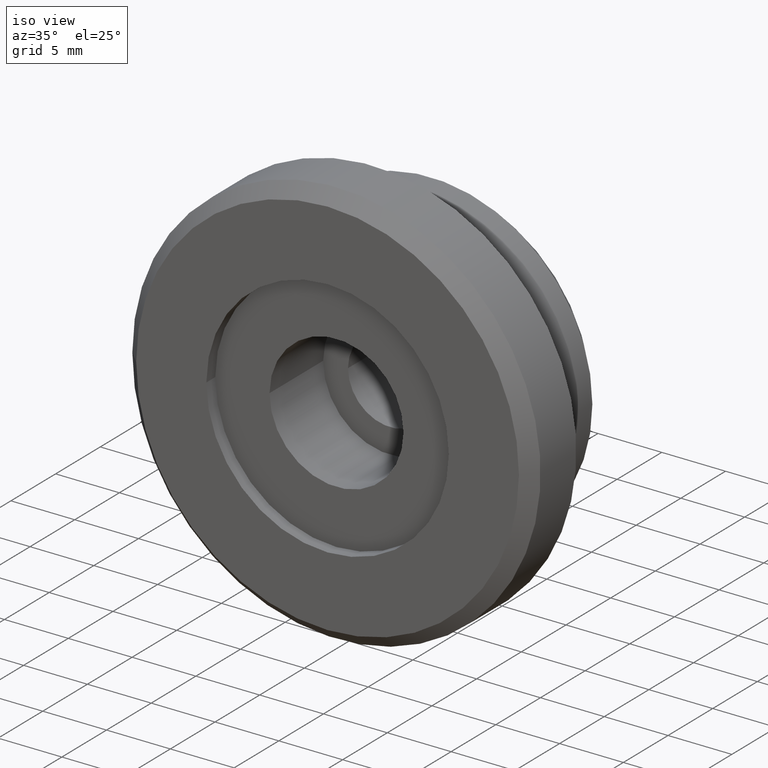
[diagram: clean part render]
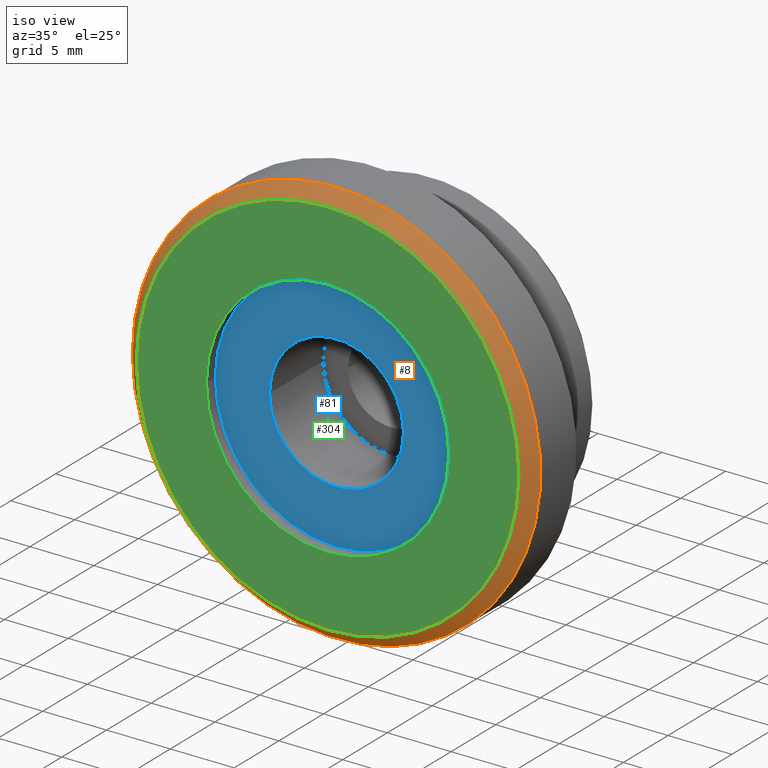
[diagram: same view with three faces highlighted in distinct colors, each labeled with its STEP entity id]
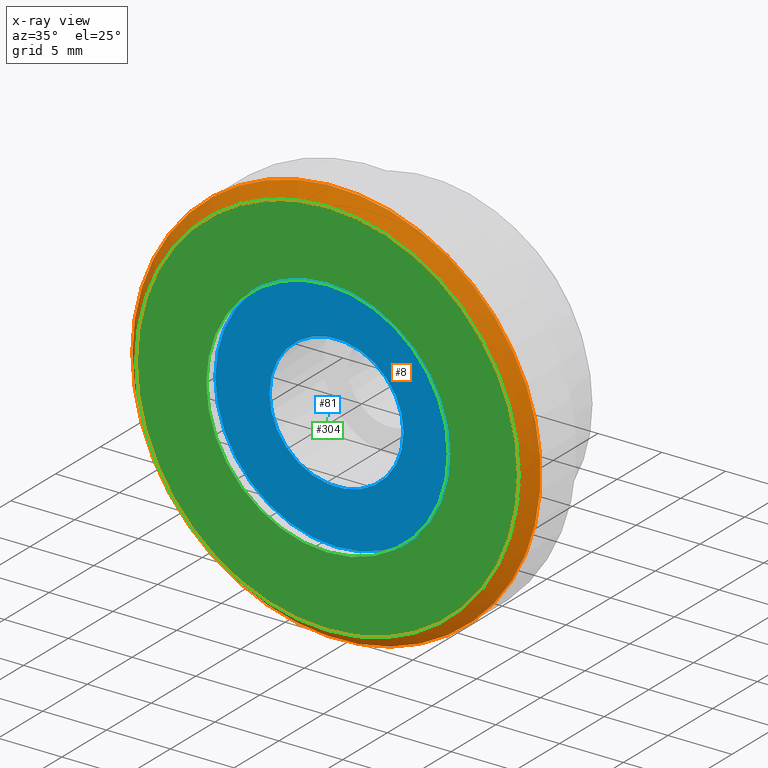
[diagram: x-ray of the same camera — body ghosted, the three highlighted faces saturated]
A machine part, iso view with three faces highlighted in distinct colors.
The next image is the same camera in x-ray (body ghosted, the three faces saturated) — at least one of them is partly hidden behind the body in this view.
Their STEP definitions:

[orange] entity #8 — the highlighted conical surface has half-angle 45 deg.
#8 = ADVANCED_FACE ( 'NONE', ( #303, #338 ), #324, .T. ) ;
#19 = DIRECTION ( 'NONE',  ( -1.000000000000000000, -1.084202172485504681E-16, 0.000000000000000000 ) ) ;
#25 = CARTESIAN_POINT ( 'NONE',  ( -1.880790961315660451E-31, -11.40000000000000213, 0.000000000000000000 ) ) ;
#33 = CARTESIAN_POINT ( 'NONE',  ( 1.084202172485501846E-16, -12.40000000000000213, 0.000000000000000000 ) ) ;
#44 = DIRECTION ( 'NONE',  ( -1.084202172485504681E-16, 1.000000000000000000, 0.000000000000000000 ) ) ;
#70 = VERTEX_POINT ( 'NONE', #299 ) ;
#90 = ORIENTED_EDGE ( 'NONE', *, *, #259, .T. ) ;
#92 = AXIS2_PLACEMENT_3D ( 'NONE', #25, #44, #19 ) ;
#93 = ORIENTED_EDGE ( 'NONE', *, *, #227, .F. ) ;
#118 = VERTEX_POINT ( 'NONE', #359 ) ;
#143 = EDGE_LOOP ( 'NONE', ( #93 ) ) ;
#166 = CIRCLE ( 'NONE', #180, 15.99999999999999645 ) ;
#180 = AXIS2_PLACEMENT_3D ( 'NONE', #233, #263, #316 ) ;
#227 = EDGE_CURVE ( 'NONE', #70, #70, #166, .T. ) ;
#233 = CARTESIAN_POINT ( 'NONE',  ( 1.365923996832131856E-16, -11.40000000000000391, 0.000000000000000000 ) ) ;
#257 = AXIS2_PLACEMENT_3D ( 'NONE', #33, #352, #284 ) ;
#259 = EDGE_CURVE ( 'NONE', #118, #118, #272, .T. ) ;
#263 = DIRECTION ( 'NONE',  ( -3.414809992080329023E-17, 1.000000000000000000, 0.000000000000000000 ) ) ;
#272 = CIRCLE ( 'NONE', #257, 15.00000000000003020 ) ;
#284 = DIRECTION ( 'NONE',  ( -1.000000000000000000, -1.156482317317869013E-16, 0.000000000000000000 ) ) ;
#299 = CARTESIAN_POINT ( 'NONE',  ( -15.99999999999999645, -11.40000000000000391, 0.000000000000000000 ) ) ;
#303 = FACE_OUTER_BOUND ( 'NONE', #143, .T. ) ;
#316 = DIRECTION ( 'NONE',  ( -1.000000000000000000, 0.000000000000000000, 0.000000000000000000 ) ) ;
#324 = CONICAL_SURFACE ( 'NONE', #92, 15.99999999999999645, 0.7853981633974318477 ) ;
#338 = FACE_BOUND ( 'NONE', #347, .T. ) ;
#347 = EDGE_LOOP ( 'NONE', ( #90 ) ) ;
#352 = DIRECTION ( 'NONE',  ( -1.084202172485504681E-16, 1.000000000000000000, 0.000000000000000000 ) ) ;
#359 = CARTESIAN_POINT ( 'NONE',  ( -15.00000000000003020, -12.40000000000000391, 0.000000000000000000 ) ) ;

[blue] entity #81 — the highlighted planar face has unit normal (0, -1, 0).
#21 = CARTESIAN_POINT ( 'NONE',  ( 8.499999999999964473, -11.39999999999996838, 0.000000000000000000 ) ) ;
#59 = DIRECTION ( 'NONE',  ( -1.000000000000000000, 0.000000000000000000, 0.000000000000000000 ) ) ;
#81 = ADVANCED_FACE ( 'NONE', ( #277, #220 ), #155, .T. ) ;
#82 = DIRECTION ( 'NONE',  ( 3.414809992080329023E-17, -1.000000000000000000, -0.000000000000000000 ) ) ;
#91 = CARTESIAN_POINT ( 'NONE',  ( -9.500000000000076383, -11.40000000000000036, 0.000000000000000000 ) ) ;
#117 = ORIENTED_EDGE ( 'NONE', *, *, #265, .T. ) ;
#121 = CIRCLE ( 'NONE', #337, 5.249999999999999112 ) ;
#127 = EDGE_CURVE ( 'NONE', #331, #331, #121, .T. ) ;
#155 = PLANE ( 'NONE',  #188 ) ;
#159 = AXIS2_PLACEMENT_3D ( 'NONE', #350, #82, #59 ) ;
#169 = ORIENTED_EDGE ( 'NONE', *, *, #127, .T. ) ;
#188 = AXIS2_PLACEMENT_3D ( 'NONE', #21, #218, #280 ) ;
#189 = DIRECTION ( 'NONE',  ( -3.414809992080329023E-17, 1.000000000000000000, 0.000000000000000000 ) ) ;
#218 = DIRECTION ( 'NONE',  ( 3.414809992080329023E-17, -1.000000000000000000, 0.000000000000000000 ) ) ;
#220 = FACE_BOUND ( 'NONE', #262, .T. ) ;
#224 = CIRCLE ( 'NONE', #159, 9.500000000000076383 ) ;
#240 = CARTESIAN_POINT ( 'NONE',  ( -5.249999999999999112, -11.39999999999993641, 0.000000000000000000 ) ) ;
#262 = EDGE_LOOP ( 'NONE', ( #169 ) ) ;
#265 = EDGE_CURVE ( 'NONE', #329, #329, #224, .T. ) ;
#277 = FACE_OUTER_BOUND ( 'NONE', #290, .T. ) ;
#280 = DIRECTION ( 'NONE',  ( 1.000000000000000000, 3.414809992080329023E-17, 0.000000000000000000 ) ) ;
#290 = EDGE_LOOP ( 'NONE', ( #117 ) ) ;
#329 = VERTEX_POINT ( 'NONE', #91 ) ;
#331 = VERTEX_POINT ( 'NONE', #240 ) ;
#335 = CARTESIAN_POINT ( 'NONE',  ( 1.365923996832108929E-16, -11.39999999999993641, 0.000000000000000000 ) ) ;
#337 = AXIS2_PLACEMENT_3D ( 'NONE', #335, #189, #360 ) ;
#350 = CARTESIAN_POINT ( 'NONE',  ( 1.365923996832130623E-16, -11.40000000000000036, 0.000000000000000000 ) ) ;
#360 = DIRECTION ( 'NONE',  ( -1.000000000000000000, 0.000000000000000000, 0.000000000000000000 ) ) ;

[green] entity #304 — the highlighted planar face has unit normal (0, -1, 0).
#6 = AXIS2_PLACEMENT_3D ( 'NONE', #321, #231, #261 ) ;
#10 = ORIENTED_EDGE ( 'NONE', *, *, #259, .F. ) ;
#14 = CARTESIAN_POINT ( 'NONE',  ( -9.500000000000076383, -12.40000000000007674, 0.000000000000000000 ) ) ;
#27 = PLANE ( 'NONE',  #123 ) ;
#33 = CARTESIAN_POINT ( 'NONE',  ( 1.084202172485501846E-16, -12.40000000000000213, 0.000000000000000000 ) ) ;
#84 = DIRECTION ( 'NONE',  ( 1.000000000000000000, 3.414809992080329023E-17, 0.000000000000000000 ) ) ;
#86 = ORIENTED_EDGE ( 'NONE', *, *, #234, .T. ) ;
#87 = FACE_BOUND ( 'NONE', #209, .T. ) ;
#114 = CIRCLE ( 'NONE', #6, 9.500000000000076383 ) ;
#118 = VERTEX_POINT ( 'NONE', #359 ) ;
#123 = AXIS2_PLACEMENT_3D ( 'NONE', #167, #346, #84 ) ;
#141 = EDGE_LOOP ( 'NONE', ( #10 ) ) ;
#167 = CARTESIAN_POINT ( 'NONE',  ( 15.00000000000003197, -12.40000000000003944, 0.000000000000000000 ) ) ;
#196 = FACE_OUTER_BOUND ( 'NONE', #141, .T. ) ;
#209 = EDGE_LOOP ( 'NONE', ( #86 ) ) ;
#210 = VERTEX_POINT ( 'NONE', #14 ) ;
#231 = DIRECTION ( 'NONE',  ( -3.414809992080329023E-17, 1.000000000000000000, 0.000000000000000000 ) ) ;
#234 = EDGE_CURVE ( 'NONE', #210, #210, #114, .T. ) ;
#257 = AXIS2_PLACEMENT_3D ( 'NONE', #33, #352, #284 ) ;
#259 = EDGE_CURVE ( 'NONE', #118, #118, #272, .T. ) ;
#261 = DIRECTION ( 'NONE',  ( -1.000000000000000000, 0.000000000000000000, 0.000000000000000000 ) ) ;
#272 = CIRCLE ( 'NONE', #257, 15.00000000000003020 ) ;
#284 = DIRECTION ( 'NONE',  ( -1.000000000000000000, -1.156482317317869013E-16, 0.000000000000000000 ) ) ;
#304 = ADVANCED_FACE ( 'NONE', ( #196, #87 ), #27, .T. ) ;
#321 = CARTESIAN_POINT ( 'NONE',  ( 1.707404996040190150E-16, -12.40000000000007674, 0.000000000000000000 ) ) ;
#346 = DIRECTION ( 'NONE',  ( 3.414809992080329023E-17, -1.000000000000000000, 0.000000000000000000 ) ) ;
#352 = DIRECTION ( 'NONE',  ( -1.084202172485504681E-16, 1.000000000000000000, 0.000000000000000000 ) ) ;
#359 = CARTESIAN_POINT ( 'NONE',  ( -15.00000000000003020, -12.40000000000000391, 0.000000000000000000 ) ) ;